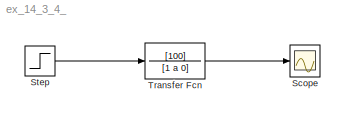
MODEL ex_14_3_4_
KIND model
BLOCK [Scope] Scope
  DataFormat = StructureWithTime
  Floating = off
  NumInputPorts = 1
  Ports = [1]
  SID = 3
  SampleTime = 0
  ShowLegends = off
BLOCK [Step] Step
  SID = 2
  SampleTime = 0
BLOCK [TransferFcn] Transfer Fcn
  Denominator = [1 a 0]
  MaskEnableString = on
  MaskIconFrame = on
  MaskIconOpaque = on
  MaskIconRotate = none
  MaskIconUnits = autoscale
  MaskPortRotate = default
  MaskPromptString = a
  MaskStyleString = edit
  MaskToolTipString = on
  MaskTunableValueString = on
  MaskValueString = 25
  MaskVariables = a=@1;
  MaskVisibilityString = on
  Numerator = [100]
  SID = 1
LINE Step:1 -> Transfer Fcn:1
LINE Transfer Fcn:1 -> Scope:1
